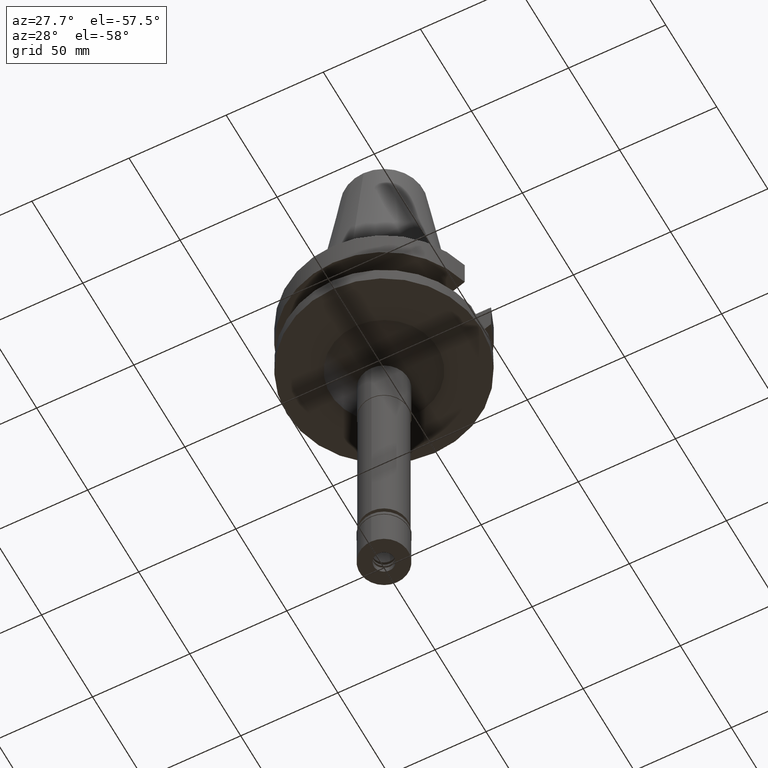
[diagram: clean part render]
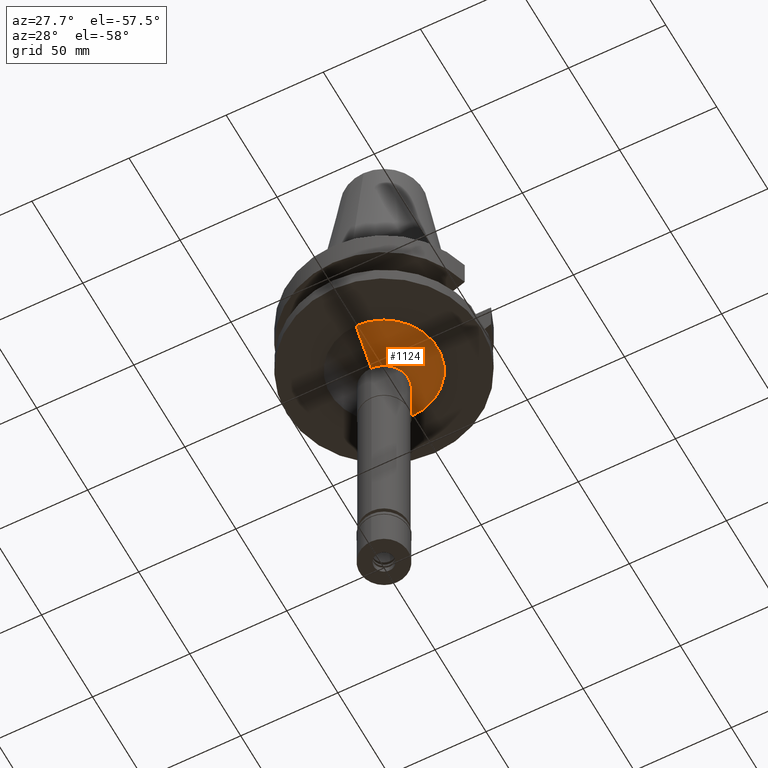
[diagram: same view with one face highlighted and labeled with its STEP entity id]
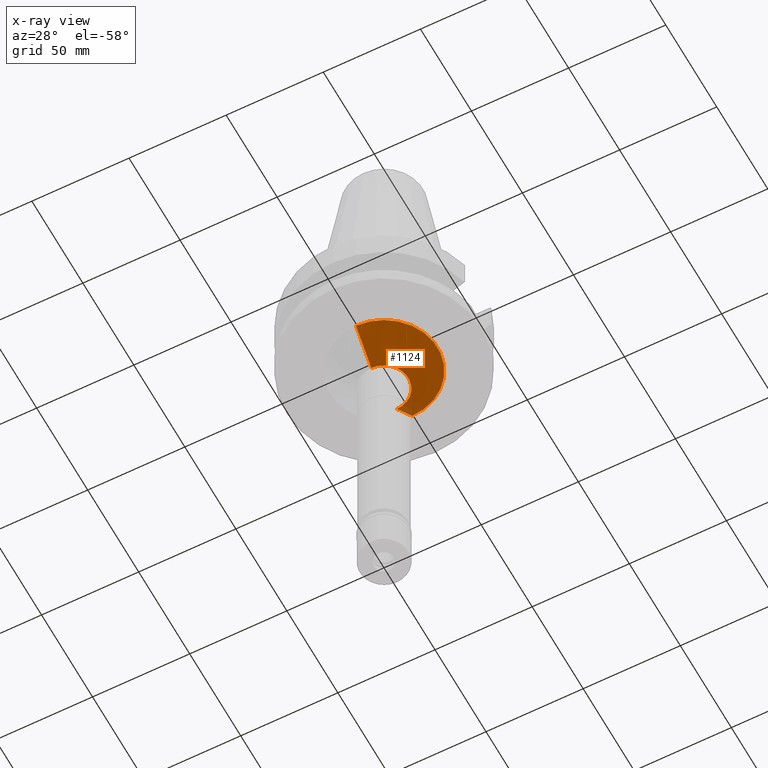
[diagram: x-ray of the same camera — body ghosted, the highlighted face saturated]
A machine part, auxiliary view. The second image highlights one B-rep face of the part: STEP entity #1124.
The next image is the same camera in x-ray: the body ghosted, the highlighted face saturated — about 2% of this face is hidden behind the body in this view.
In plain terms, the highlighted conical surface has half-angle 45 deg.
Its self-contained STEP definition (entity closure, byte-faithful):
#32 = DIRECTION ( 'NONE',  ( 0.0000000000000000000, 1.000000000000000000, 0.0000000000000000000 ) ) ;
#147 = DIRECTION ( 'NONE',  ( 0.0000000000000000000, 0.0000000000000000000, 1.000000000000000000 ) ) ;
#229 = AXIS2_PLACEMENT_3D ( 'NONE', #2351, #817, #32 ) ;
#276 = ORIENTED_EDGE ( 'NONE', *, *, #1411, .F. ) ;
#540 = CARTESIAN_POINT ( 'NONE',  ( 0.0000000000000000000, 27.50000000000000000, -38.00000000000000000 ) ) ;
#546 = ORIENTED_EDGE ( 'NONE', *, *, #2975, .T. ) ;
#714 = EDGE_LOOP ( 'NONE', ( #546, #844, #276, #2723 ) ) ;
#763 = LINE ( 'NONE', #1695, #1244 ) ;
#815 = DIRECTION ( 'NONE',  ( 0.0000000000000000000, 0.7071067811865474617, -0.7071067811865474617 ) ) ;
#817 = DIRECTION ( 'NONE',  ( 0.0000000000000000000, 0.0000000000000000000, -1.000000000000000000 ) ) ;
#844 = ORIENTED_EDGE ( 'NONE', *, *, #1509, .T. ) ;
#933 = CIRCLE ( 'NONE', #2122, 12.50000000000000000 ) ;
#1010 = DIRECTION ( 'NONE',  ( 0.0000000000000000000, 1.000000000000000000, 0.0000000000000000000 ) ) ;
#1097 = CONICAL_SURFACE ( 'NONE', #3014, 20.00000000000000000, 0.7853981633972997312 ) ;
#1124 = ADVANCED_FACE ( 'NONE', ( #2380 ), #1097, .T. ) ;
#1244 = VECTOR ( 'NONE', #815, 1000.000000000000114 ) ;
#1264 = CARTESIAN_POINT ( 'NONE',  ( 0.0000000000000000000, 27.50000000000000000, -38.00000000000000000 ) ) ;
#1379 = CARTESIAN_POINT ( 'NONE',  ( 0.0000000000000000000, 0.0000000000000000000, -45.50000000000000000 ) ) ;
#1411 = EDGE_CURVE ( 'NONE', #2458, #2510, #933, .T. ) ;
#1509 = EDGE_CURVE ( 'NONE', #2185, #2510, #763, .T. ) ;
#1541 = CARTESIAN_POINT ( 'NONE',  ( 0.0000000000000000000, 12.50000000000000000, -53.00000000000000000 ) ) ;
#1695 = CARTESIAN_POINT ( 'NONE',  ( 0.0000000000000000000, -27.50000000000000000, -38.00000000000000000 ) ) ;
#1808 = CIRCLE ( 'NONE', #229, 27.50000000000000000 ) ;
#2122 = AXIS2_PLACEMENT_3D ( 'NONE', #2549, #2499, #1010 ) ;
#2185 = VERTEX_POINT ( 'NONE', #2199 ) ;
#2199 = CARTESIAN_POINT ( 'NONE',  ( 0.0000000000000000000, -27.50000000000000000, -38.00000000000000000 ) ) ;
#2278 = EDGE_CURVE ( 'NONE', #2365, #2458, #3018, .T. ) ;
#2351 = CARTESIAN_POINT ( 'NONE',  ( 0.0000000000000000000, 0.0000000000000000000, -38.00000000000000000 ) ) ;
#2365 = VERTEX_POINT ( 'NONE', #540 ) ;
#2380 = FACE_OUTER_BOUND ( 'NONE', #714, .T. ) ;
#2458 = VERTEX_POINT ( 'NONE', #1541 ) ;
#2499 = DIRECTION ( 'NONE',  ( 0.0000000000000000000, 0.0000000000000000000, -1.000000000000000000 ) ) ;
#2510 = VERTEX_POINT ( 'NONE', #3113 ) ;
#2549 = CARTESIAN_POINT ( 'NONE',  ( 0.0000000000000000000, 0.0000000000000000000, -53.00000000000000000 ) ) ;
#2723 = ORIENTED_EDGE ( 'NONE', *, *, #2278, .F. ) ;
#2765 = DIRECTION ( 'NONE',  ( 0.0000000000000000000, -0.7071067811865474617, -0.7071067811865474617 ) ) ;
#2975 = EDGE_CURVE ( 'NONE', #2365, #2185, #1808, .T. ) ;
#3014 = AXIS2_PLACEMENT_3D ( 'NONE', #1379, #147, #3103 ) ;
#3018 = LINE ( 'NONE', #1264, #3071 ) ;
#3071 = VECTOR ( 'NONE', #2765, 1000.000000000000114 ) ;
#3103 = DIRECTION ( 'NONE',  ( 0.0000000000000000000, 1.000000000000000000, 0.0000000000000000000 ) ) ;
#3113 = CARTESIAN_POINT ( 'NONE',  ( 0.0000000000000000000, -12.50000000000000000, -53.00000000000000000 ) ) ;